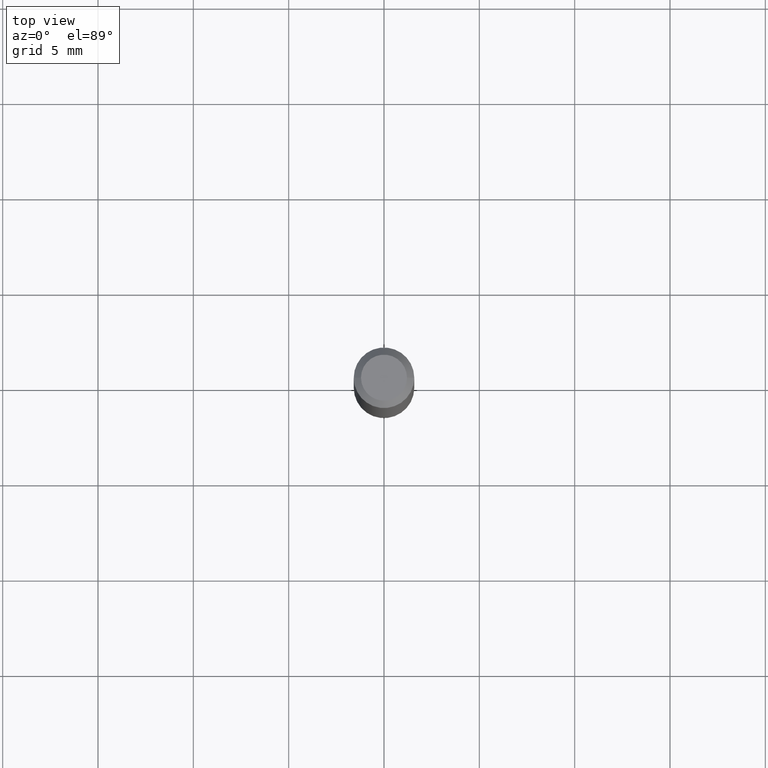
[diagram: clean part render]
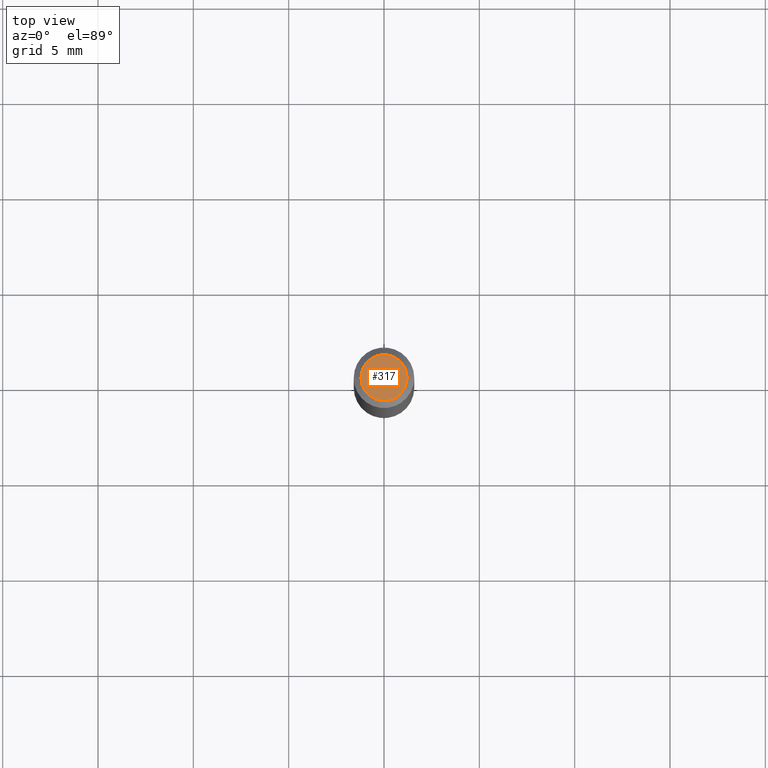
[diagram: same view with one face highlighted and labeled with its STEP entity id]
A machine part, top view. The second image highlights one B-rep face of the part: STEP entity #317.
In plain terms, the highlighted planar face has unit normal (0, -0, -1).
Its self-contained STEP definition (entity closure, byte-faithful):
#12 = CARTESIAN_POINT ( 'NONE',  ( 3.316907271900976589E-16, 0.04750000000000000749, -2.925296391183627249E-17 ) ) ;
#14 = DIRECTION ( 'NONE',  ( 2.438088387897960049E-29, -3.491481338843145188E-15, -1.000000000000000000 ) ) ;
#37 = CARTESIAN_POINT ( 'NONE',  ( 0.04750000000000000749, -4.035134999187568762E-16, 2.731847993664288856E-16 ) ) ;
#53 = EDGE_CURVE ( 'NONE', #106, #356, #478, .T. ) ;
#106 = VERTEX_POINT ( 'NONE', #37 ) ;
#153 = ORIENTED_EDGE ( 'NONE', *, *, #160, .T. ) ;
#160 = EDGE_CURVE ( 'NONE', #356, #106, #235, .T. ) ;
#167 = CARTESIAN_POINT ( 'NONE',  ( -0.04750000000000000749, 3.578768372314221353E-16, 2.731847993664239060E-16 ) ) ;
#218 = CARTESIAN_POINT ( 'NONE',  ( -6.680649051745406845E-45, 9.538196290434862081E-31, 2.731847993664263218E-16 ) ) ;
#235 = CIRCLE ( 'NONE', #288, 0.04750000000000000749 ) ;
#241 = DIRECTION ( 'NONE',  ( 1.000000000000000000, -6.982962677686266711E-15, 4.852736867747365086E-29 ) ) ;
#280 = CARTESIAN_POINT ( 'NONE',  ( -6.680649051745406845E-45, 9.538196290434862081E-31, 2.731847993664263218E-16 ) ) ;
#288 = AXIS2_PLACEMENT_3D ( 'NONE', #280, #318, #241 ) ;
#301 = PLANE ( 'NONE',  #434 ) ;
#304 = DIRECTION ( 'NONE',  ( -1.000000000000000000, 6.982962677686265922E-15, -4.876176775795935793E-29 ) ) ;
#317 = ADVANCED_FACE ( 'NONE', ( #418 ), #301, .F. ) ;
#318 = DIRECTION ( 'NONE',  ( -2.445468806185136597E-29, 3.491481338843145583E-15, 1.000000000000000000 ) ) ;
#335 = AXIS2_PLACEMENT_3D ( 'NONE', #218, #504, #495 ) ;
#356 = VERTEX_POINT ( 'NONE', #167 ) ;
#380 = EDGE_LOOP ( 'NONE', ( #153, #505 ) ) ;
#418 = FACE_OUTER_BOUND ( 'NONE', #380, .T. ) ;
#434 = AXIS2_PLACEMENT_3D ( 'NONE', #12, #14, #304 ) ;
#478 = CIRCLE ( 'NONE', #335, 0.04750000000000000749 ) ;
#495 = DIRECTION ( 'NONE',  ( 1.000000000000000000, -6.982962677686266711E-15, 4.852736867747365086E-29 ) ) ;
#504 = DIRECTION ( 'NONE',  ( -2.445468806185136597E-29, 3.491481338843145583E-15, 1.000000000000000000 ) ) ;
#505 = ORIENTED_EDGE ( 'NONE', *, *, #53, .T. ) ;